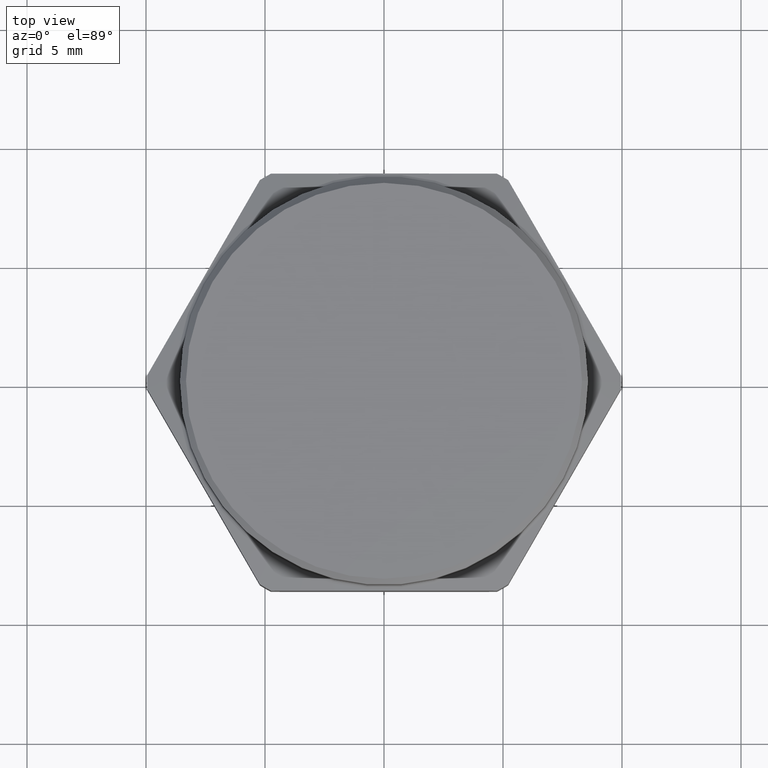
[diagram: clean part render]
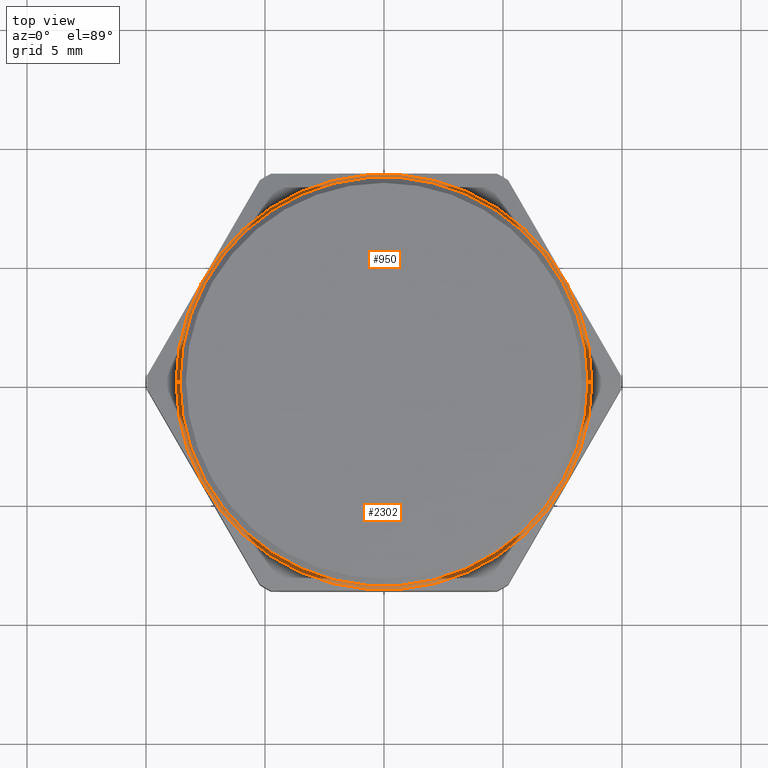
[diagram: same view with one multi-face feature highlighted, each face labeled with its STEP entity id]
A machine part, top view. The highlighted faces form ONE feature: a constant-radius fillet chain: 2 tangent blend faces with common blend radius 0.2032 mm. The faces share edges in the B-rep.
Their STEP definitions:
[1] entity #950 (Torus):
#178 = CIRCLE ( 'NONE', #2036, 0.008000000000000024500 ) ;
#188 = CIRCLE ( 'NONE', #2040, 0.3374999999999998000 ) ;
#200 = CIRCLE ( 'NONE', #2044, 0.3438367064734577100 ) ;
#204 = CIRCLE ( 'NONE', #2047, 0.008000000000000007100 ) ;
#294 = CARTESIAN_POINT ( 'NONE',  ( -0.3454999999999998600, 4.231154691054103400E-017, 0.1464782722655601200 ) ) ;
#295 = DIRECTION ( 'NONE',  ( 1.224646799147353200E-016, 1.000000000000000000, -7.498798913309267500E-033 ) ) ;
#296 = DIRECTION ( 'NONE',  ( -1.000000000000000000, 1.224646799147354200E-016, 0.0000000000000000000 ) ) ;
#315 = CARTESIAN_POINT ( 'NONE',  ( 0.0000000000000000000, 0.0000000000000000000, 0.1464782722655601200 ) ) ;
#316 = DIRECTION ( 'NONE',  ( 6.123233995736748800E-017, 0.0000000000000000000, 1.000000000000000000 ) ) ;
#317 = DIRECTION ( 'NONE',  ( 1.000000000000000000, 0.0000000000000000000, -5.058977766044935000E-017 ) ) ;
#337 = CARTESIAN_POINT ( 'NONE',  ( 1.698010646479937000E-017, 0.0000000000000000000, 0.1386530914596896800 ) ) ;
#338 = DIRECTION ( 'NONE',  ( -6.123233995736748800E-017, -0.0000000000000000000, -1.000000000000000000 ) ) ;
#339 = DIRECTION ( 'NONE',  ( 1.000000000000000000, 0.0000000000000000000, -4.965743807728005500E-017 ) ) ;
#381 = CARTESIAN_POINT ( 'NONE',  ( 0.3454999999999998600, 0.0000000000000000000, 0.1464782722655600900 ) ) ;
#382 = DIRECTION ( 'NONE',  ( 0.0000000000000000000, -1.000000000000000000, 0.0000000000000000000 ) ) ;
#383 = DIRECTION ( 'NONE',  ( 0.0000000000000000000, 0.0000000000000000000, -1.000000000000000000 ) ) ;
#871 = EDGE_LOOP ( 'NONE', ( #2851, #2856, #2850, #2852 ) ) ;
#898 = VERTEX_POINT ( 'NONE', #2683 ) ;
#950 = ADVANCED_FACE ( 'NONE', ( #1003 ), #1011, .F. ) ;
#1003 = FACE_OUTER_BOUND ( 'NONE', #871, .T. ) ;
#1011 = TOROIDAL_SURFACE ( 'NONE', #1998, 0.3454999999999998600, 0.008000000000000000200 ) ;
#1778 = CARTESIAN_POINT ( 'NONE',  ( -0.3438367064734577600, 0.0000000000000000000, 0.1386530914596896800 ) ) ;
#1779 = CARTESIAN_POINT ( 'NONE',  ( 0.3438367064734574900, 4.210785220120877600E-017, 0.1386530914596896500 ) ) ;
#1780 = CARTESIAN_POINT ( 'NONE',  ( 0.3374999999999998000, 4.133182947122313500E-017, 0.1464782722655600900 ) ) ;
#1927 = EDGE_CURVE ( 'NONE', #898, #2342, #178, .T. ) ;
#1933 = EDGE_CURVE ( 'NONE', #2344, #898, #188, .T. ) ;
#1941 = EDGE_CURVE ( 'NONE', #2342, #2343, #200, .T. ) ;
#1947 = EDGE_CURVE ( 'NONE', #2344, #2343, #204, .T. ) ;
#1998 = AXIS2_PLACEMENT_3D ( 'NONE', #2747, #2758, #2749 ) ;
#2036 = AXIS2_PLACEMENT_3D ( 'NONE', #294, #295, #296 ) ;
#2040 = AXIS2_PLACEMENT_3D ( 'NONE', #315, #316, #317 ) ;
#2044 = AXIS2_PLACEMENT_3D ( 'NONE', #337, #338, #339 ) ;
#2047 = AXIS2_PLACEMENT_3D ( 'NONE', #381, #382, #383 ) ;
#2342 = VERTEX_POINT ( 'NONE', #1778 ) ;
#2343 = VERTEX_POINT ( 'NONE', #1779 ) ;
#2344 = VERTEX_POINT ( 'NONE', #1780 ) ;
#2683 = CARTESIAN_POINT ( 'NONE',  ( -0.3374999999999998000, 0.0000000000000000000, 0.1464782722655601200 ) ) ;
#2747 = CARTESIAN_POINT ( 'NONE',  ( 4.938180262646443800E-018, 0.0000000000000000000, 0.1464782722655601200 ) ) ;
#2749 = DIRECTION ( 'NONE',  ( 1.000000000000000000, 0.0000000000000000000, -6.123233995736748800E-017 ) ) ;
#2758 = DIRECTION ( 'NONE',  ( 6.123233995736748800E-017, 0.0000000000000000000, 1.000000000000000000 ) ) ;
#2850 = ORIENTED_EDGE ( 'NONE', *, *, #1947, .T. ) ;
#2851 = ORIENTED_EDGE ( 'NONE', *, *, #1927, .F. ) ;
#2852 = ORIENTED_EDGE ( 'NONE', *, *, #1941, .F. ) ;
#2856 = ORIENTED_EDGE ( 'NONE', *, *, #1933, .F. ) ;
[2] entity #2302 (Torus):
#132 = TOROIDAL_SURFACE ( 'NONE', #2070, 0.3454999999999998600, 0.008000000000000000200 ) ;
#135 = FACE_OUTER_BOUND ( 'NONE', #892, .T. ) ;
#178 = CIRCLE ( 'NONE', #2036, 0.008000000000000024500 ) ;
#189 = CIRCLE ( 'NONE', #2039, 0.3374999999999998000 ) ;
#199 = CIRCLE ( 'NONE', #2046, 0.3438367064734577100 ) ;
#204 = CIRCLE ( 'NONE', #2047, 0.008000000000000007100 ) ;
#294 = CARTESIAN_POINT ( 'NONE',  ( -0.3454999999999998600, 4.231154691054103400E-017, 0.1464782722655601200 ) ) ;
#295 = DIRECTION ( 'NONE',  ( 1.224646799147353200E-016, 1.000000000000000000, -7.498798913309267500E-033 ) ) ;
#296 = DIRECTION ( 'NONE',  ( -1.000000000000000000, 1.224646799147354200E-016, 0.0000000000000000000 ) ) ;
#310 = CARTESIAN_POINT ( 'NONE',  ( 0.0000000000000000000, 0.0000000000000000000, 0.1464782722655601200 ) ) ;
#311 = DIRECTION ( 'NONE',  ( 6.123233995736748800E-017, 0.0000000000000000000, 1.000000000000000000 ) ) ;
#312 = DIRECTION ( 'NONE',  ( 1.000000000000000000, 0.0000000000000000000, -5.058977766044935000E-017 ) ) ;
#376 = CARTESIAN_POINT ( 'NONE',  ( 1.698010646479937000E-017, 0.0000000000000000000, 0.1386530914596896800 ) ) ;
#377 = DIRECTION ( 'NONE',  ( -6.123233995736748800E-017, -0.0000000000000000000, -1.000000000000000000 ) ) ;
#378 = DIRECTION ( 'NONE',  ( 1.000000000000000000, 0.0000000000000000000, -4.965743807728005500E-017 ) ) ;
#381 = CARTESIAN_POINT ( 'NONE',  ( 0.3454999999999998600, 0.0000000000000000000, 0.1464782722655600900 ) ) ;
#382 = DIRECTION ( 'NONE',  ( 0.0000000000000000000, -1.000000000000000000, 0.0000000000000000000 ) ) ;
#383 = DIRECTION ( 'NONE',  ( 0.0000000000000000000, 0.0000000000000000000, -1.000000000000000000 ) ) ;
#892 = EDGE_LOOP ( 'NONE', ( #2842, #2843, #2844, #2845 ) ) ;
#898 = VERTEX_POINT ( 'NONE', #2683 ) ;
#1711 = DIRECTION ( 'NONE',  ( 6.123233995736748800E-017, 0.0000000000000000000, 1.000000000000000000 ) ) ;
#1712 = CARTESIAN_POINT ( 'NONE',  ( 4.938180262646443800E-018, 0.0000000000000000000, 0.1464782722655601200 ) ) ;
#1714 = DIRECTION ( 'NONE',  ( 1.000000000000000000, 0.0000000000000000000, -6.123233995736748800E-017 ) ) ;
#1778 = CARTESIAN_POINT ( 'NONE',  ( -0.3438367064734577600, 0.0000000000000000000, 0.1386530914596896800 ) ) ;
#1779 = CARTESIAN_POINT ( 'NONE',  ( 0.3438367064734574900, 4.210785220120877600E-017, 0.1386530914596896500 ) ) ;
#1780 = CARTESIAN_POINT ( 'NONE',  ( 0.3374999999999998000, 4.133182947122313500E-017, 0.1464782722655600900 ) ) ;
#1927 = EDGE_CURVE ( 'NONE', #898, #2342, #178, .T. ) ;
#1932 = EDGE_CURVE ( 'NONE', #898, #2344, #189, .T. ) ;
#1946 = EDGE_CURVE ( 'NONE', #2343, #2342, #199, .T. ) ;
#1947 = EDGE_CURVE ( 'NONE', #2344, #2343, #204, .T. ) ;
#2036 = AXIS2_PLACEMENT_3D ( 'NONE', #294, #295, #296 ) ;
#2039 = AXIS2_PLACEMENT_3D ( 'NONE', #310, #311, #312 ) ;
#2046 = AXIS2_PLACEMENT_3D ( 'NONE', #376, #377, #378 ) ;
#2047 = AXIS2_PLACEMENT_3D ( 'NONE', #381, #382, #383 ) ;
#2070 = AXIS2_PLACEMENT_3D ( 'NONE', #1712, #1711, #1714 ) ;
#2302 = ADVANCED_FACE ( 'NONE', ( #135 ), #132, .F. ) ;
#2342 = VERTEX_POINT ( 'NONE', #1778 ) ;
#2343 = VERTEX_POINT ( 'NONE', #1779 ) ;
#2344 = VERTEX_POINT ( 'NONE', #1780 ) ;
#2683 = CARTESIAN_POINT ( 'NONE',  ( -0.3374999999999998000, 0.0000000000000000000, 0.1464782722655601200 ) ) ;
#2842 = ORIENTED_EDGE ( 'NONE', *, *, #1932, .F. ) ;
#2843 = ORIENTED_EDGE ( 'NONE', *, *, #1927, .T. ) ;
#2844 = ORIENTED_EDGE ( 'NONE', *, *, #1946, .F. ) ;
#2845 = ORIENTED_EDGE ( 'NONE', *, *, #1947, .F. ) ;